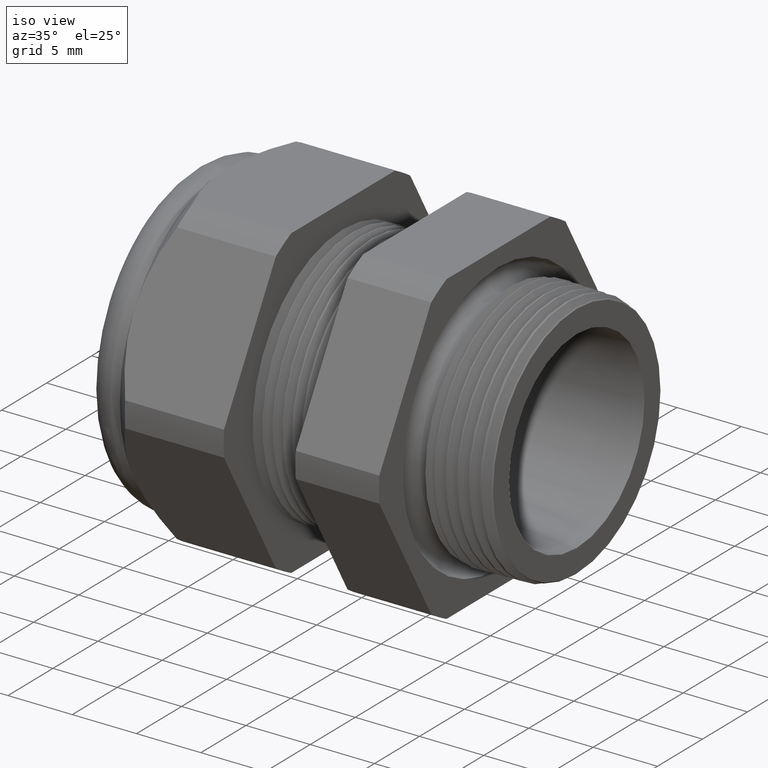
[diagram: clean part render]
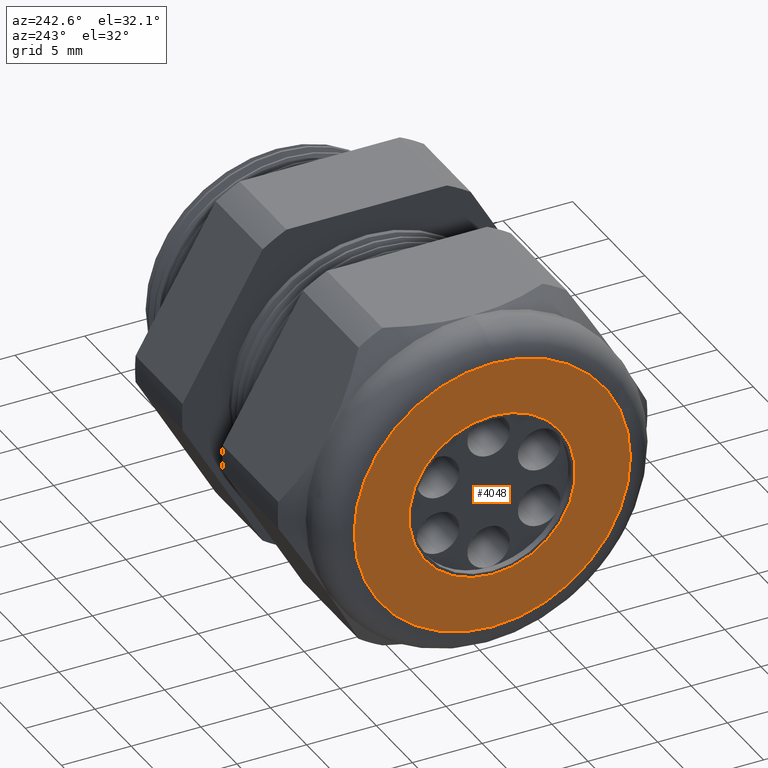
[diagram: tour spotlight — one face highlighted and labeled with its STEP entity id]
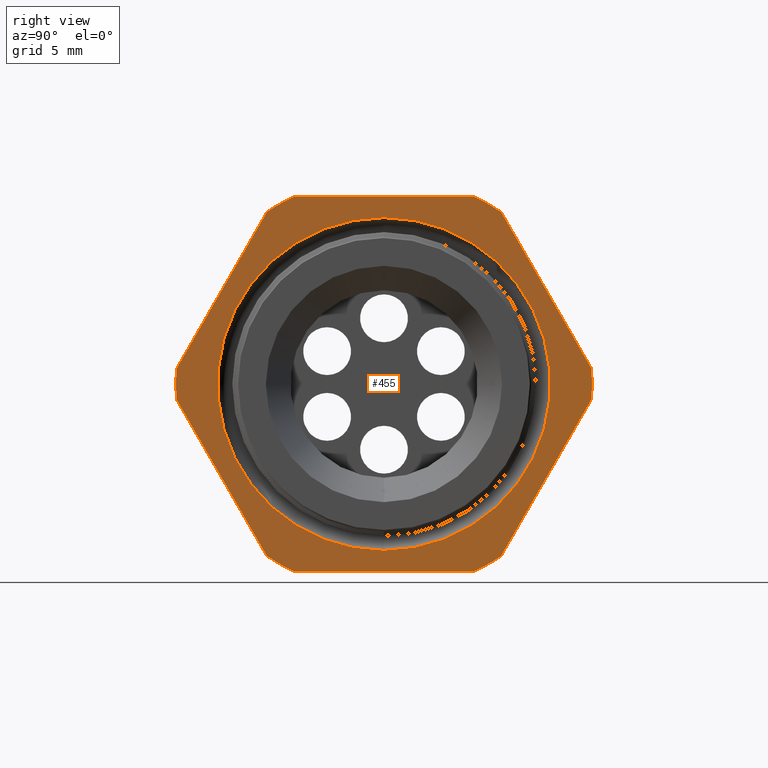
[diagram: tour spotlight — one face highlighted and labeled with its STEP entity id]
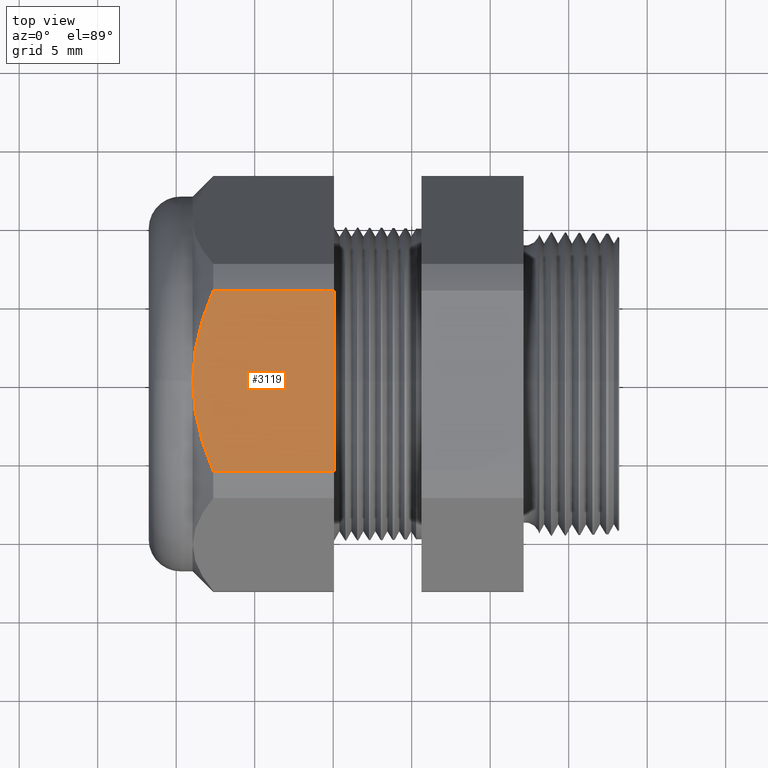
[diagram: tour spotlight — one face highlighted and labeled with its STEP entity id]
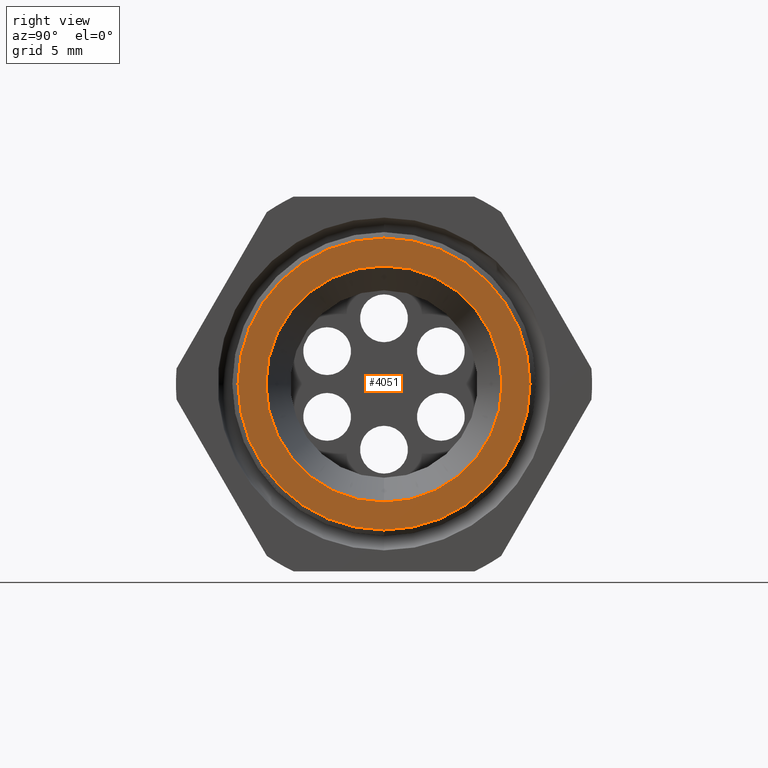
[diagram: tour spotlight — one face highlighted and labeled with its STEP entity id]
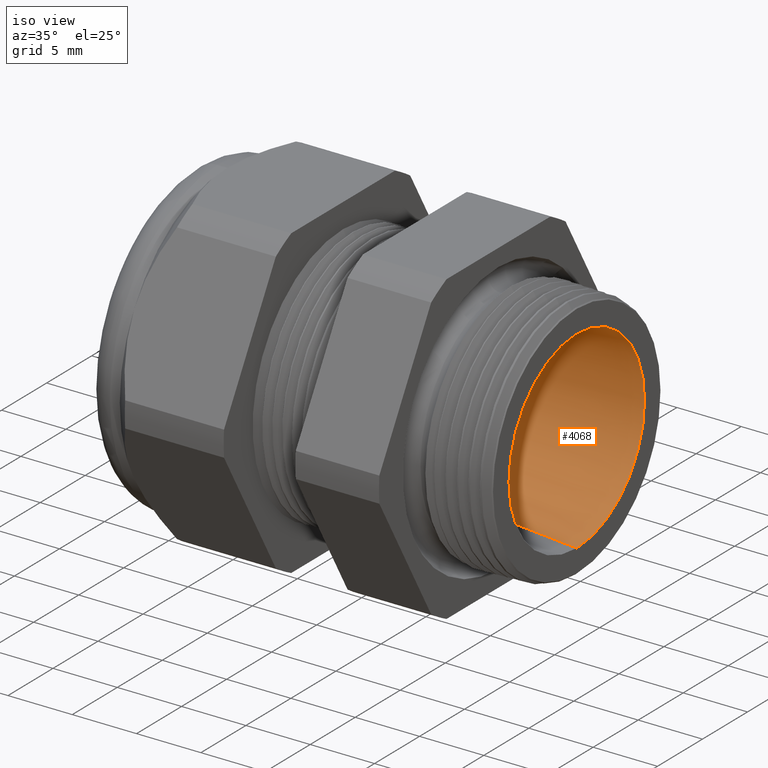
[diagram: tour spotlight — one face highlighted and labeled with its STEP entity id]
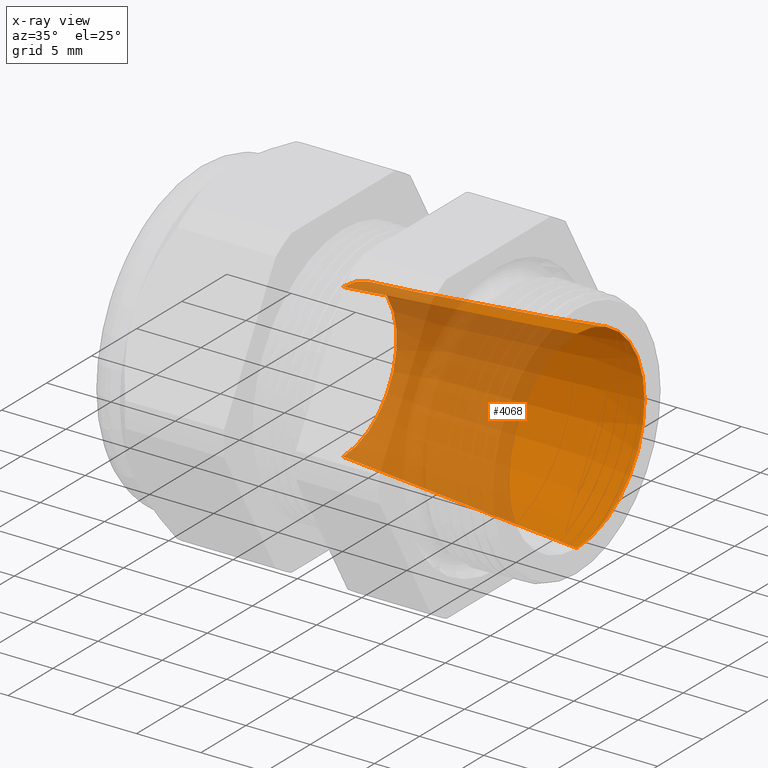
[diagram: x-ray of the same camera — body ghosted, this tour face saturated]
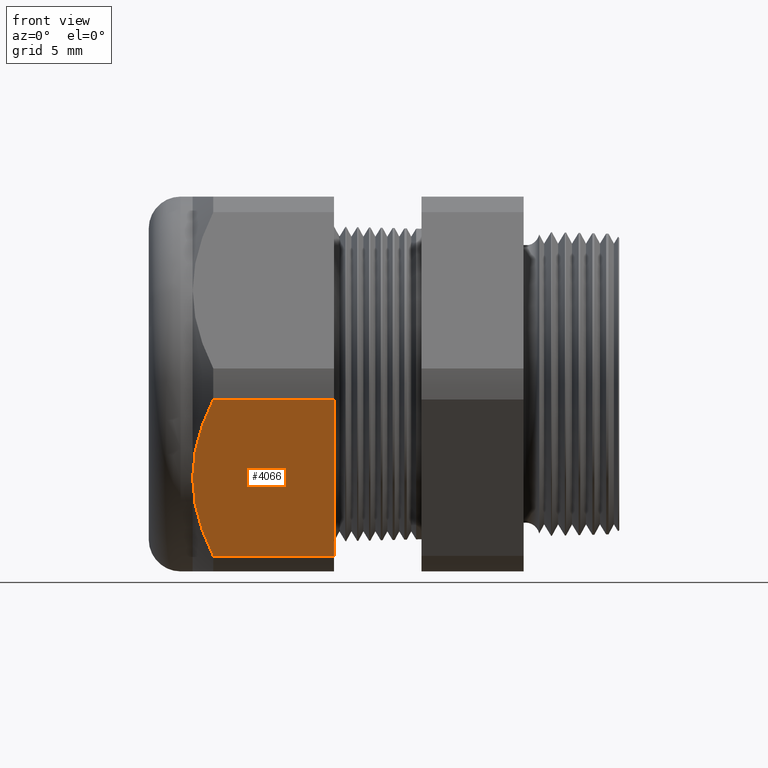
[diagram: tour spotlight — one face highlighted and labeled with its STEP entity id]
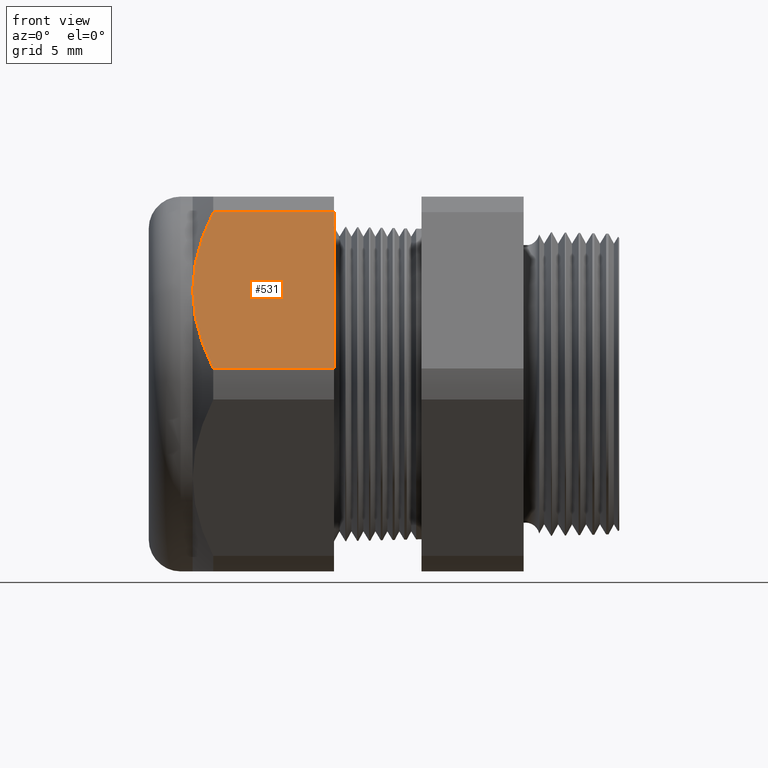
[diagram: tour spotlight — one face highlighted and labeled with its STEP entity id]
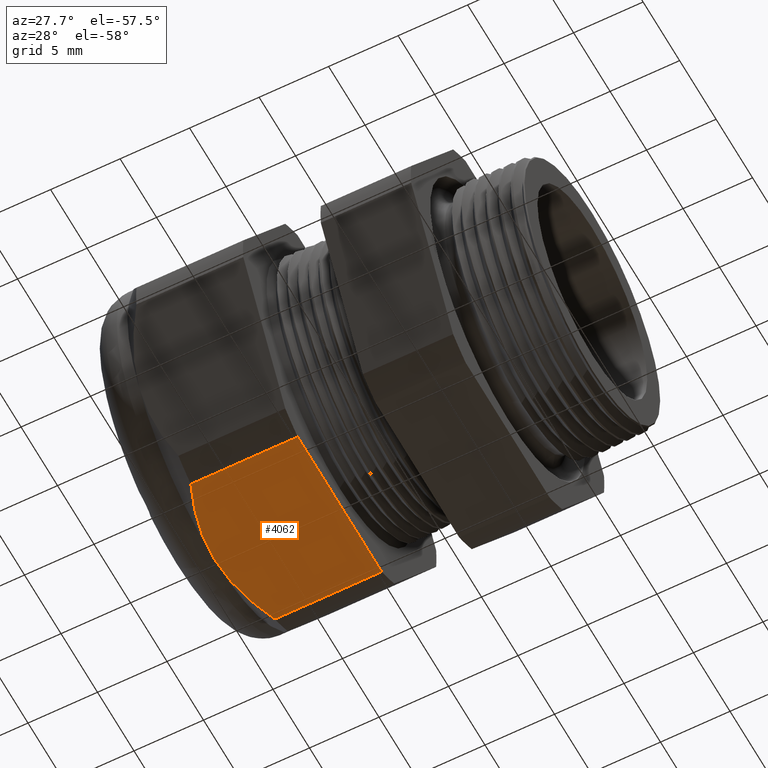
[diagram: tour spotlight — one face highlighted and labeled with its STEP entity id]
A machine part: a face-by-face anatomy tour. The part has 144 B-rep faces; the first image is the clean iso view, then the 8 largest visible faces are spotlighted one at a time (largest first), each with its STEP entity span.

Face 1 — auxiliary view, entity #4048. In plain terms, the highlighted planar face has unit normal (-1, 0, 0).
Definition (entity closure, byte-faithful):
#744 = VERTEX_POINT ( 'NONE', #2587 ) ;
#746 = EDGE_CURVE ( 'NONE', #747, #744, #2586, .T. ) ;
#747 = VERTEX_POINT ( 'NONE', #2641 ) ;
#775 = EDGE_CURVE ( 'NONE', #776, #777, #2655, .T. ) ;
#776 = VERTEX_POINT ( 'NONE', #2650 ) ;
#777 = VERTEX_POINT ( 'NONE', #2649 ) ;
#2583 = DIRECTION ( 'NONE',  ( -1.000000000000000000, 0.0000000000000000000, 0.0000000000000000000 ) ) ;
#2584 = CARTESIAN_POINT ( 'NONE',  ( -1.249999999999999800, 0.0000000000000000000, 0.0000000000000000000 ) ) ;
#2585 = AXIS2_PLACEMENT_3D ( 'NONE', #2584, #2583, #2642 ) ;
#2586 = CIRCLE ( 'NONE', #2585, 0.3899999999999999600 ) ;
#2587 = CARTESIAN_POINT ( 'NONE',  ( -1.249999999999999800, 5.265981236333617600E-017, -0.3899999999999999600 ) ) ;
#2641 = CARTESIAN_POINT ( 'NONE',  ( -1.249999999999999800, 0.0000000000000000000, 0.3899999999999999600 ) ) ;
#2642 = DIRECTION ( 'NONE',  ( 0.0000000000000000000, 0.0000000000000000000, 1.000000000000000000 ) ) ;
#2649 = CARTESIAN_POINT ( 'NONE',  ( -1.249999999999999800, 0.0000000000000000000, -0.2349999999999999900 ) ) ;
#2650 = CARTESIAN_POINT ( 'NONE',  ( -1.249999999999999800, 2.877919977996279800E-017, 0.2349999999999999900 ) ) ;
#2651 = DIRECTION ( 'NONE',  ( 0.0000000000000000000, 0.0000000000000000000, -1.000000000000000000 ) ) ;
#2652 = DIRECTION ( 'NONE',  ( 1.000000000000000000, 0.0000000000000000000, 0.0000000000000000000 ) ) ;
#2653 = CARTESIAN_POINT ( 'NONE',  ( -1.249999999999999800, 0.0000000000000000000, 0.0000000000000000000 ) ) ;
#2654 = AXIS2_PLACEMENT_3D ( 'NONE', #2653, #2652, #2651 ) ;
#2655 = CIRCLE ( 'NONE', #2654, 0.2349999999999999900 ) ;
#3775 = DIRECTION ( 'NONE',  ( 0.0000000000000000000, 0.0000000000000000000, 1.000000000000000000 ) ) ;
#3776 = DIRECTION ( 'NONE',  ( -1.000000000000000000, 0.0000000000000000000, 0.0000000000000000000 ) ) ;
#3777 = CARTESIAN_POINT ( 'NONE',  ( -1.249999999999999800, 0.0000000000000000000, 0.0000000000000000000 ) ) ;
#3778 = AXIS2_PLACEMENT_3D ( 'NONE', #3777, #3776, #3775 ) ;
#3779 = CIRCLE ( 'NONE', #3778, 0.3899999999999999600 ) ;
#3806 = DIRECTION ( 'NONE',  ( 0.0000000000000000000, 0.0000000000000000000, 1.000000000000000000 ) ) ;
#3807 = DIRECTION ( 'NONE',  ( -1.000000000000000000, 0.0000000000000000000, 0.0000000000000000000 ) ) ;
#3808 = CARTESIAN_POINT ( 'NONE',  ( -1.249999999999999800, 0.4699999999999999700, 0.0000000000000000000 ) ) ;
#3809 = AXIS2_PLACEMENT_3D ( 'NONE', #3808, #3807, #3806 ) ;
#3810 = PLANE ( 'NONE',  #3809 ) ;
#3811 = FACE_BOUND ( 'NONE', #4023, .T. ) ;
#3812 = FACE_OUTER_BOUND ( 'NONE', #4036, .T. ) ;
#3850 = DIRECTION ( 'NONE',  ( 0.0000000000000000000, 0.0000000000000000000, -1.000000000000000000 ) ) ;
#3851 = DIRECTION ( 'NONE',  ( 1.000000000000000000, 0.0000000000000000000, 0.0000000000000000000 ) ) ;
#3852 = CARTESIAN_POINT ( 'NONE',  ( -1.249999999999999800, 0.0000000000000000000, 0.0000000000000000000 ) ) ;
#3853 = AXIS2_PLACEMENT_3D ( 'NONE', #3852, #3851, #3850 ) ;
#3854 = CIRCLE ( 'NONE', #3853, 0.2349999999999999900 ) ;
#4023 = EDGE_LOOP ( 'NONE', ( #4096, #4099 ) ) ;
#4030 = ORIENTED_EDGE ( 'NONE', *, *, #4033, .T. ) ;
#4031 = ORIENTED_EDGE ( 'NONE', *, *, #746, .T. ) ;
#4033 = EDGE_CURVE ( 'NONE', #744, #747, #3779, .T. ) ;
#4036 = EDGE_LOOP ( 'NONE', ( #4031, #4030 ) ) ;
#4048 = ADVANCED_FACE ( 'NONE', ( #3812, #3811 ), #3810, .T. ) ;
#4096 = ORIENTED_EDGE ( 'NONE', *, *, #4097, .T. ) ;
#4097 = EDGE_CURVE ( 'NONE', #777, #776, #3854, .T. ) ;
#4099 = ORIENTED_EDGE ( 'NONE', *, *, #775, .T. ) ;

Face 2 — right view, entity #455. In plain terms, the highlighted planar face has unit normal (1, 0, 0).
Definition (entity closure, byte-faithful):
#4 = EDGE_CURVE ( 'NONE', #4032, #460, #1250, .T. ) ;
#6 = ORIENTED_EDGE ( 'NONE', *, *, #9, .T. ) ;
#7 = ORIENTED_EDGE ( 'NONE', *, *, #4, .T. ) ;
#9 = EDGE_CURVE ( 'NONE', #4034, #4032, #1307, .T. ) ;
#346 = EDGE_CURVE ( 'NONE', #460, #459, #1783, .T. ) ;
#422 = EDGE_LOOP ( 'NONE', ( #431, #458, #456, #449, #447, #4049, #4044, #4046, #4040, #4038, #6, #7 ) ) ;
#431 = ORIENTED_EDGE ( 'NONE', *, *, #346, .T. ) ;
#436 = ORIENTED_EDGE ( 'NONE', *, *, #1196, .F. ) ;
#437 = ORIENTED_EDGE ( 'NONE', *, *, #438, .F. ) ;
#438 = EDGE_CURVE ( 'NONE', #1197, #1194, #1967, .T. ) ;
#439 = EDGE_LOOP ( 'NONE', ( #437, #436 ) ) ;
#443 = VERTEX_POINT ( 'NONE', #2014 ) ;
#444 = VERTEX_POINT ( 'NONE', #2013 ) ;
#446 = EDGE_CURVE ( 'NONE', #450, #443, #2007, .T. ) ;
#447 = ORIENTED_EDGE ( 'NONE', *, *, #446, .T. ) ;
#448 = EDGE_CURVE ( 'NONE', #451, #450, #2003, .T. ) ;
#449 = ORIENTED_EDGE ( 'NONE', *, *, #448, .T. ) ;
#450 = VERTEX_POINT ( 'NONE', #1998 ) ;
#451 = VERTEX_POINT ( 'NONE', #1997 ) ;
#452 = EDGE_CURVE ( 'NONE', #457, #451, #1996, .T. ) ;
#455 = ADVANCED_FACE ( 'NONE', ( #1987, #1986 ), #1985, .T. ) ;
#456 = ORIENTED_EDGE ( 'NONE', *, *, #452, .T. ) ;
#457 = VERTEX_POINT ( 'NONE', #2043 ) ;
#458 = ORIENTED_EDGE ( 'NONE', *, *, #461, .T. ) ;
#459 = VERTEX_POINT ( 'NONE', #2042 ) ;
#460 = VERTEX_POINT ( 'NONE', #2041 ) ;
#461 = EDGE_CURVE ( 'NONE', #459, #457, #2040, .T. ) ;
#1194 = VERTEX_POINT ( 'NONE', #3383 ) ;
#1196 = EDGE_CURVE ( 'NONE', #1194, #1197, #3382, .T. ) ;
#1197 = VERTEX_POINT ( 'NONE', #3377 ) ;
#1246 = DIRECTION ( 'NONE',  ( 0.0000000000000000000, 0.0000000000000000000, -1.000000000000000000 ) ) ;
#1247 = DIRECTION ( 'NONE',  ( 1.000000000000000000, 0.0000000000000000000, 0.0000000000000000000 ) ) ;
#1248 = CARTESIAN_POINT ( 'NONE',  ( -0.3100000000000000000, 0.0000000000000000000, 0.0000000000000000000 ) ) ;
#1249 = AXIS2_PLACEMENT_3D ( 'NONE', #1248, #1247, #1246 ) ;
#1250 = CIRCLE ( 'NONE', #1249, 0.5217000000000000500 ) ;
#1304 = DIRECTION ( 'NONE',  ( 0.0000000000000000000, 1.000000000000000000, 0.0000000000000000000 ) ) ;
#1305 = VECTOR ( 'NONE', #1304, 39.37007874015748100 ) ;
#1306 = CARTESIAN_POINT ( 'NONE',  ( -0.3100000000000000000, 0.9399999999999999500, -0.4700000000000000300 ) ) ;
#1307 = LINE ( 'NONE', #1306, #1305 ) ;
#1780 = DIRECTION ( 'NONE',  ( 0.0000000000000000000, 0.5000000000000000000, 0.8660254037844386000 ) ) ;
#1781 = VECTOR ( 'NONE', #1780, 39.37007874015748100 ) ;
#1782 = CARTESIAN_POINT ( 'NONE',  ( -0.3100000000000000000, 0.6420319397786863300, 0.1720319397786860300 ) ) ;
#1783 = LINE ( 'NONE', #1782, #1781 ) ;
#1954 = DIRECTION ( 'NONE',  ( 0.0000000000000000000, 0.0000000000000000000, -1.000000000000000000 ) ) ;
#1955 = DIRECTION ( 'NONE',  ( 1.000000000000000000, 0.0000000000000000000, 0.0000000000000000000 ) ) ;
#1966 = AXIS2_PLACEMENT_3D ( 'NONE', #1969, #1955, #1954 ) ;
#1967 = CIRCLE ( 'NONE', #1966, 0.4171913630462824000 ) ;
#1969 = CARTESIAN_POINT ( 'NONE',  ( -0.3100000000000000000, 0.0000000000000000000, 0.0000000000000000000 ) ) ;
#1985 = PLANE ( 'NONE',  #2047 ) ;
#1986 = FACE_OUTER_BOUND ( 'NONE', #422, .T. ) ;
#1987 = FACE_BOUND ( 'NONE', #439, .T. ) ;
#1993 = DIRECTION ( 'NONE',  ( 0.0000000000000000000, -0.4999999999999998300, 0.8660254037844388200 ) ) ;
#1994 = VECTOR ( 'NONE', #1993, 39.37007874015748100 ) ;
#1995 = CARTESIAN_POINT ( 'NONE',  ( -0.3100000000000000000, 0.6420319397786862200, -0.1720319397786860500 ) ) ;
#1996 = LINE ( 'NONE', #1995, #1994 ) ;
#1997 = CARTESIAN_POINT ( 'NONE',  ( -0.3100000000000000000, 0.2938165587564948700, 0.4310947921287048800 ) ) ;
#1998 = CARTESIAN_POINT ( 'NONE',  ( -0.3100000000000000000, 0.2264307620443832800, 0.4699999999999999200 ) ) ;
#1999 = DIRECTION ( 'NONE',  ( 0.0000000000000000000, 0.0000000000000000000, -1.000000000000000000 ) ) ;
#2000 = DIRECTION ( 'NONE',  ( 1.000000000000000000, 0.0000000000000000000, 0.0000000000000000000 ) ) ;
#2001 = CARTESIAN_POINT ( 'NONE',  ( -0.3100000000000000000, 0.0000000000000000000, 0.0000000000000000000 ) ) ;
#2002 = AXIS2_PLACEMENT_3D ( 'NONE', #2001, #2000, #1999 ) ;
#2003 = CIRCLE ( 'NONE', #2002, 0.5217000000000000500 ) ;
#2004 = DIRECTION ( 'NONE',  ( 0.0000000000000000000, -1.000000000000000000, 0.0000000000000000000 ) ) ;
#2005 = VECTOR ( 'NONE', #2004, 39.37007874015748100 ) ;
#2006 = CARTESIAN_POINT ( 'NONE',  ( -0.3100000000000000000, 0.9399999999999999500, 0.4699999999999999200 ) ) ;
#2007 = LINE ( 'NONE', #2006, #2005 ) ;
#2013 = CARTESIAN_POINT ( 'NONE',  ( -0.3100000000000000000, -0.2938165587564945900, 0.4310947921287050500 ) ) ;
#2014 = CARTESIAN_POINT ( 'NONE',  ( -0.3100000000000000000, -0.2264307620443835300, 0.4699999999999997000 ) ) ;
#2036 = DIRECTION ( 'NONE',  ( 0.0000000000000000000, 0.0000000000000000000, -1.000000000000000000 ) ) ;
#2037 = DIRECTION ( 'NONE',  ( 1.000000000000000000, 0.0000000000000000000, 0.0000000000000000000 ) ) ;
#2038 = CARTESIAN_POINT ( 'NONE',  ( -0.3100000000000000000, 0.0000000000000000000, 0.0000000000000000000 ) ) ;
#2039 = AXIS2_PLACEMENT_3D ( 'NONE', #2038, #2037, #2036 ) ;
#2040 = CIRCLE ( 'NONE', #2039, 0.5217000000000000500 ) ;
#2041 = CARTESIAN_POINT ( 'NONE',  ( -0.3100000000000000000, 0.2938165587564949800, -0.4310947921287047700 ) ) ;
#2042 = CARTESIAN_POINT ( 'NONE',  ( -0.3100000000000000000, 0.5202473208008777700, -0.03890520787129524800 ) ) ;
#2043 = CARTESIAN_POINT ( 'NONE',  ( -0.3100000000000000000, 0.5202473208008776600, 0.03890520787129531800 ) ) ;
#2044 = DIRECTION ( 'NONE',  ( 0.0000000000000000000, 0.0000000000000000000, -1.000000000000000000 ) ) ;
#2045 = DIRECTION ( 'NONE',  ( 1.000000000000000000, 0.0000000000000000000, 0.0000000000000000000 ) ) ;
#2046 = CARTESIAN_POINT ( 'NONE',  ( -0.3100000000000000000, 0.9399999999999999500, 0.0000000000000000000 ) ) ;
#2047 = AXIS2_PLACEMENT_3D ( 'NONE', #2046, #2045, #2044 ) ;
#3377 = CARTESIAN_POINT ( 'NONE',  ( -0.3100000000000000000, 0.0000000000000000000, -0.4171913630462824000 ) ) ;
#3378 = DIRECTION ( 'NONE',  ( 0.0000000000000000000, 0.0000000000000000000, -1.000000000000000000 ) ) ;
#3379 = DIRECTION ( 'NONE',  ( 1.000000000000000000, 0.0000000000000000000, 0.0000000000000000000 ) ) ;
#3380 = CARTESIAN_POINT ( 'NONE',  ( -0.3100000000000000000, 0.0000000000000000000, 0.0000000000000000000 ) ) ;
#3381 = AXIS2_PLACEMENT_3D ( 'NONE', #3380, #3379, #3378 ) ;
#3382 = CIRCLE ( 'NONE', #3381, 0.4171913630462824000 ) ;
#3383 = CARTESIAN_POINT ( 'NONE',  ( -0.3100000000000000000, 5.109120673865511800E-017, 0.4171913630462824000 ) ) ;
#3717 = CARTESIAN_POINT ( 'NONE',  ( -0.3100000000000000000, 0.2264307620443831200, -0.4700000000000000300 ) ) ;
#3749 = DIRECTION ( 'NONE',  ( 0.0000000000000000000, 0.0000000000000000000, -1.000000000000000000 ) ) ;
#3750 = DIRECTION ( 'NONE',  ( 1.000000000000000000, 0.0000000000000000000, 0.0000000000000000000 ) ) ;
#3751 = CARTESIAN_POINT ( 'NONE',  ( -0.3100000000000000000, 0.0000000000000000000, 0.0000000000000000000 ) ) ;
#3752 = AXIS2_PLACEMENT_3D ( 'NONE', #3751, #3750, #3749 ) ;
#3753 = CIRCLE ( 'NONE', #3752, 0.5217000000000000500 ) ;
#3754 = CARTESIAN_POINT ( 'NONE',  ( -0.3100000000000000000, -0.5202473208008777700, -0.03890520787129508200 ) ) ;
#3755 = DIRECTION ( 'NONE',  ( 0.0000000000000000000, 0.0000000000000000000, -1.000000000000000000 ) ) ;
#3756 = DIRECTION ( 'NONE',  ( 1.000000000000000000, 0.0000000000000000000, 0.0000000000000000000 ) ) ;
#3757 = CARTESIAN_POINT ( 'NONE',  ( -0.3100000000000000000, 0.0000000000000000000, 0.0000000000000000000 ) ) ;
#3758 = AXIS2_PLACEMENT_3D ( 'NONE', #3757, #3756, #3755 ) ;
#3759 = CIRCLE ( 'NONE', #3758, 0.5217000000000000500 ) ;
#3760 = DIRECTION ( 'NONE',  ( 0.0000000000000000000, -0.4999999999999998300, -0.8660254037844388200 ) ) ;
#3761 = VECTOR ( 'NONE', #3760, 39.37007874015748100 ) ;
#3762 = CARTESIAN_POINT ( 'NONE',  ( -0.3100000000000000000, -0.1720319397786862800, 0.6420319397786858900 ) ) ;
#3763 = LINE ( 'NONE', #3762, #3761 ) ;
#3764 = DIRECTION ( 'NONE',  ( 0.0000000000000000000, 0.5000000000000001100, -0.8660254037844386000 ) ) ;
#3765 = VECTOR ( 'NONE', #3764, 39.37007874015748100 ) ;
#3766 = CARTESIAN_POINT ( 'NONE',  ( -0.3100000000000000000, -0.1720319397786861700, -0.6420319397786863300 ) ) ;
#3767 = LINE ( 'NONE', #3766, #3765 ) ;
#3768 = CARTESIAN_POINT ( 'NONE',  ( -0.3100000000000000000, -0.2938165587564944800, -0.4310947921287051100 ) ) ;
#3769 = DIRECTION ( 'NONE',  ( 0.0000000000000000000, 0.0000000000000000000, -1.000000000000000000 ) ) ;
#3770 = DIRECTION ( 'NONE',  ( 1.000000000000000000, 0.0000000000000000000, 0.0000000000000000000 ) ) ;
#3771 = CARTESIAN_POINT ( 'NONE',  ( -0.3100000000000000000, 0.0000000000000000000, 0.0000000000000000000 ) ) ;
#3772 = AXIS2_PLACEMENT_3D ( 'NONE', #3771, #3770, #3769 ) ;
#3773 = CIRCLE ( 'NONE', #3772, 0.5217000000000000500 ) ;
#3774 = CARTESIAN_POINT ( 'NONE',  ( -0.3100000000000000000, -0.2264307620443830900, -0.4700000000000000300 ) ) ;
#3805 = CARTESIAN_POINT ( 'NONE',  ( -0.3100000000000000000, -0.5202473208008777700, 0.03890520787129464500 ) ) ;
#4032 = VERTEX_POINT ( 'NONE', #3717 ) ;
#4034 = VERTEX_POINT ( 'NONE', #3774 ) ;
#4035 = EDGE_CURVE ( 'NONE', #4037, #4034, #3773, .T. ) ;
#4037 = VERTEX_POINT ( 'NONE', #3768 ) ;
#4038 = ORIENTED_EDGE ( 'NONE', *, *, #4035, .T. ) ;
#4039 = EDGE_CURVE ( 'NONE', #4043, #4037, #3767, .T. ) ;
#4040 = ORIENTED_EDGE ( 'NONE', *, *, #4039, .T. ) ;
#4041 = EDGE_CURVE ( 'NONE', #444, #4050, #3763, .T. ) ;
#4042 = EDGE_CURVE ( 'NONE', #4050, #4043, #3759, .T. ) ;
#4043 = VERTEX_POINT ( 'NONE', #3754 ) ;
#4044 = ORIENTED_EDGE ( 'NONE', *, *, #4041, .T. ) ;
#4045 = EDGE_CURVE ( 'NONE', #443, #444, #3753, .T. ) ;
#4046 = ORIENTED_EDGE ( 'NONE', *, *, #4042, .T. ) ;
#4049 = ORIENTED_EDGE ( 'NONE', *, *, #4045, .T. ) ;
#4050 = VERTEX_POINT ( 'NONE', #3805 ) ;

Face 3 — top view, entity #3119. In plain terms, the highlighted planar face has unit normal (0, 0, 1).
Definition (entity closure, byte-faithful):
#418 = ORIENTED_EDGE ( 'NONE', *, *, #419, .F. ) ;
#419 = EDGE_CURVE ( 'NONE', #565, #543, #1944, .T. ) ;
#543 = VERTEX_POINT ( 'NONE', #2190 ) ;
#545 = VERTEX_POINT ( 'NONE', #2184 ) ;
#549 = EDGE_CURVE ( 'NONE', #543, #545, #2183, .T. ) ;
#559 = ORIENTED_EDGE ( 'NONE', *, *, #561, .T. ) ;
#560 = EDGE_CURVE ( 'NONE', #564, #788, #2206, .T. ) ;
#561 = EDGE_CURVE ( 'NONE', #788, #545, #2254, .T. ) ;
#562 = ORIENTED_EDGE ( 'NONE', *, *, #560, .T. ) ;
#563 = ORIENTED_EDGE ( 'NONE', *, *, #549, .F. ) ;
#564 = VERTEX_POINT ( 'NONE', #2253 ) ;
#565 = VERTEX_POINT ( 'NONE', #2255 ) ;
#567 = EDGE_CURVE ( 'NONE', #565, #564, #2240, .T. ) ;
#568 = ORIENTED_EDGE ( 'NONE', *, *, #567, .T. ) ;
#788 = VERTEX_POINT ( 'NONE', #2694 ) ;
#1941 = DIRECTION ( 'NONE',  ( 0.0000000000000000000, -1.000000000000000000, 0.0000000000000000000 ) ) ;
#1942 = VECTOR ( 'NONE', #1941, 39.37007874015748100 ) ;
#1943 = CARTESIAN_POINT ( 'NONE',  ( -0.7854330708661414500, 0.3950000000000000200, 0.4699999999999999200 ) ) ;
#1944 = LINE ( 'NONE', #1943, #1942 ) ;
#2180 = DIRECTION ( 'NONE',  ( -1.000000000000000000, 0.0000000000000000000, 0.0000000000000000000 ) ) ;
#2181 = VECTOR ( 'NONE', #2180, 39.37007874015748100 ) ;
#2182 = CARTESIAN_POINT ( 'NONE',  ( -0.06999999999999993700, -0.2264307620443835300, 0.4699999999999997000 ) ) ;
#2183 = LINE ( 'NONE', #2182, #2181 ) ;
#2184 = CARTESIAN_POINT ( 'NONE',  ( -1.088063779527558700, -0.2264307620443834500, 0.4699999999999999200 ) ) ;
#2190 = CARTESIAN_POINT ( 'NONE',  ( -0.7854330708661414500, -0.2264307620443835300, 0.4699999999999997000 ) ) ;
#2206 = B_SPLINE_CURVE_WITH_KNOTS ( 'NONE', 3,
 ( #2265, #2264, #2263, #2262, #2261, #2260, #2259, #2258, #2257, #2256 ),
 .UNSPECIFIED., .F., .F.,
 ( 4, 2, 2, 2, 4 ),
 ( 0.009140358755258088200, 0.01061001397932214000, 0.01207966920338619300, 0.01354932442745024500, 0.01501897965151429700 ),
 .UNSPECIFIED. ) ;
#2237 = DIRECTION ( 'NONE',  ( -1.000000000000000000, 0.0000000000000000000, 0.0000000000000000000 ) ) ;
#2238 = VECTOR ( 'NONE', #2237, 39.37007874015748100 ) ;
#2239 = CARTESIAN_POINT ( 'NONE',  ( -0.06999999999999993700, 0.2264307620443832800, 0.4699999999999999200 ) ) ;
#2240 = LINE ( 'NONE', #2239, #2238 ) ;
#2245 = CARTESIAN_POINT ( 'NONE',  ( -1.088063779527558700, -0.2264307620443834500, 0.4699999999999999200 ) ) ;
#2246 = CARTESIAN_POINT ( 'NONE',  ( -1.095800659726855300, -0.2086048696456210300, 0.4699999999999999700 ) ) ;
#2247 = CARTESIAN_POINT ( 'NONE',  ( -1.102949366997028100, -0.1904348960138966800, 0.4700000000000000300 ) ) ;
#2248 = CARTESIAN_POINT ( 'NONE',  ( -1.115712352585576100, -0.1532690879941743800, 0.4699999999999999200 ) ) ;
#2249 = CARTESIAN_POINT ( 'NONE',  ( -1.121231388637372800, -0.1345390626635396500, 0.4699999999999998600 ) ) ;
#2250 = CARTESIAN_POINT ( 'NONE',  ( -1.134778598172672600, -0.07783554612607099200, 0.4699999999999998600 ) ) ;
#2251 = CARTESIAN_POINT ( 'NONE',  ( -1.139763779527558800, -0.03934296915062190200, 0.4699999999999999700 ) ) ;
#2252 = CARTESIAN_POINT ( 'NONE',  ( -1.139763779527558800, 0.0000000000000000000, 0.4699999999999999200 ) ) ;
#2253 = CARTESIAN_POINT ( 'NONE',  ( -1.088063779527558700, 0.2264307620443833400, 0.4700000000000000300 ) ) ;
#2254 = B_SPLINE_CURVE_WITH_KNOTS ( 'NONE', 3,
 ( #2252, #2251, #2250, #2249, #2248, #2247, #2246, #2245 ),
 .UNSPECIFIED., .F., .F.,
 ( 4, 2, 2, 4 ),
 ( 0.01501897965151429700, 0.01796263803772296000, 0.01943446723082728800, 0.02090629642393161700 ),
 .UNSPECIFIED. ) ;
#2255 = CARTESIAN_POINT ( 'NONE',  ( -0.7854330708661414500, 0.2264307620443832800, 0.4699999999999999200 ) ) ;
#2256 = CARTESIAN_POINT ( 'NONE',  ( -1.139763779527558800, 0.0000000000000000000, 0.4699999999999999200 ) ) ;
#2257 = CARTESIAN_POINT ( 'NONE',  ( -1.139763779527559000, 0.01964242875915809400, 0.4699999999999999200 ) ) ;
#2258 = CARTESIAN_POINT ( 'NONE',  ( -1.138517019735540500, 0.03924163778662351200, 0.4699999999999999700 ) ) ;
#2259 = CARTESIAN_POINT ( 'NONE',  ( -1.133749478914868500, 0.07782038235249978700, 0.4699999999999999200 ) ) ;
#2260 = CARTESIAN_POINT ( 'NONE',  ( -1.130231001418866300, 0.09688970369981489400, 0.4699999999999999700 ) ) ;
#2261 = CARTESIAN_POINT ( 'NONE',  ( -1.121202062721104600, 0.1346420459264780200, 0.4699999999999999200 ) ) ;
#2262 = CARTESIAN_POINT ( 'NONE',  ( -1.115692781244512300, 0.1533252955870070000, 0.4699999999999999200 ) ) ;
#2263 = CARTESIAN_POINT ( 'NONE',  ( -1.102974602953725700, 0.1903621927138393300, 0.4699999999999999700 ) ) ;
#2264 = CARTESIAN_POINT ( 'NONE',  ( -1.095800509309332100, 0.2086052162099338300, 0.4699999999999997500 ) ) ;
#2265 = CARTESIAN_POINT ( 'NONE',  ( -1.088063779527558700, 0.2264307620443833400, 0.4700000000000000300 ) ) ;
#2694 = CARTESIAN_POINT ( 'NONE',  ( -1.139763779527558800, 0.0000000000000000000, 0.4699999999999999200 ) ) ;
#3119 = ADVANCED_FACE ( 'NONE', ( #3563 ), #3568, .T. ) ;
#3187 = EDGE_LOOP ( 'NONE', ( #568, #562, #559, #563, #418 ) ) ;
#3563 = FACE_OUTER_BOUND ( 'NONE', #3187, .T. ) ;
#3568 = PLANE ( 'NONE',  #3627 ) ;
#3624 = DIRECTION ( 'NONE',  ( 1.000000000000000000, 0.0000000000000000000, 0.0000000000000000000 ) ) ;
#3625 = DIRECTION ( 'NONE',  ( 0.0000000000000000000, 0.0000000000000000000, 1.000000000000000000 ) ) ;
#3626 = CARTESIAN_POINT ( 'NONE',  ( -0.06999999999999993700, -0.2264307620443832800, 0.4699999999999999200 ) ) ;
#3627 = AXIS2_PLACEMENT_3D ( 'NONE', #3626, #3625, #3624 ) ;

Face 4 — right view, entity #4051. In plain terms, the highlighted planar face has unit normal (1, 0, 0).
Definition (entity closure, byte-faithful):
#48 = ORIENTED_EDGE ( 'NONE', *, *, #49, .T. ) ;
#49 = EDGE_CURVE ( 'NONE', #759, #758, #1357, .T. ) ;
#50 = ORIENTED_EDGE ( 'NONE', *, *, #757, .T. ) ;
#51 = EDGE_LOOP ( 'NONE', ( #52, #53 ) ) ;
#52 = ORIENTED_EDGE ( 'NONE', *, *, #4054, .F. ) ;
#53 = ORIENTED_EDGE ( 'NONE', *, *, #797, .F. ) ;
#757 = EDGE_CURVE ( 'NONE', #758, #759, #2619, .T. ) ;
#758 = VERTEX_POINT ( 'NONE', #2615 ) ;
#759 = VERTEX_POINT ( 'NONE', #2614 ) ;
#795 = VERTEX_POINT ( 'NONE', #2682 ) ;
#797 = EDGE_CURVE ( 'NONE', #795, #798, #2681, .T. ) ;
#798 = VERTEX_POINT ( 'NONE', #2676 ) ;
#1353 = DIRECTION ( 'NONE',  ( 0.0000000000000000000, 0.0000000000000000000, -1.000000000000000000 ) ) ;
#1354 = DIRECTION ( 'NONE',  ( 1.000000000000000000, 0.0000000000000000000, 0.0000000000000000000 ) ) ;
#1355 = CARTESIAN_POINT ( 'NONE',  ( -0.06999999999999996500, 0.0000000000000000000, 0.0000000000000000000 ) ) ;
#1356 = AXIS2_PLACEMENT_3D ( 'NONE', #1355, #1354, #1353 ) ;
#1357 = CIRCLE ( 'NONE', #1356, 0.3659933049898728100 ) ;
#2614 = CARTESIAN_POINT ( 'NONE',  ( -0.06999999999999996500, 0.0000000000000000000, 0.3659933049898728100 ) ) ;
#2615 = CARTESIAN_POINT ( 'NONE',  ( -0.06999999999999996500, 4.501577275657292900E-017, -0.3659933049898728100 ) ) ;
#2616 = DIRECTION ( 'NONE',  ( 0.0000000000000000000, 0.0000000000000000000, -1.000000000000000000 ) ) ;
#2617 = DIRECTION ( 'NONE',  ( 1.000000000000000000, 0.0000000000000000000, 0.0000000000000000000 ) ) ;
#2618 = AXIS2_PLACEMENT_3D ( 'NONE', #2624, #2617, #2616 ) ;
#2619 = CIRCLE ( 'NONE', #2618, 0.3659933049898728100 ) ;
#2624 = CARTESIAN_POINT ( 'NONE',  ( -0.06999999999999996500, 0.0000000000000000000, 0.0000000000000000000 ) ) ;
#2676 = CARTESIAN_POINT ( 'NONE',  ( -0.06999999999999996500, 0.0000000000000000000, -0.2962657257183017900 ) ) ;
#2677 = DIRECTION ( 'NONE',  ( 0.0000000000000000000, 0.0000000000000000000, -1.000000000000000000 ) ) ;
#2678 = DIRECTION ( 'NONE',  ( 1.000000000000000000, 0.0000000000000000000, 0.0000000000000000000 ) ) ;
#2679 = CARTESIAN_POINT ( 'NONE',  ( -0.06999999999999996500, 0.0000000000000000000, 0.0000000000000000000 ) ) ;
#2680 = AXIS2_PLACEMENT_3D ( 'NONE', #2679, #2678, #2677 ) ;
#2681 = CIRCLE ( 'NONE', #2680, 0.2962657257183017900 ) ;
#2682 = CARTESIAN_POINT ( 'NONE',  ( -0.06999999999999996500, 3.628208726979859300E-017, 0.2962657257183017900 ) ) ;
#3792 = DIRECTION ( 'NONE',  ( 0.0000000000000000000, 0.0000000000000000000, -1.000000000000000000 ) ) ;
#3793 = DIRECTION ( 'NONE',  ( 1.000000000000000000, 0.0000000000000000000, 0.0000000000000000000 ) ) ;
#3794 = CARTESIAN_POINT ( 'NONE',  ( -0.06999999999999996500, 0.0000000000000000000, 0.0000000000000000000 ) ) ;
#3795 = AXIS2_PLACEMENT_3D ( 'NONE', #3794, #3793, #3792 ) ;
#3796 = CIRCLE ( 'NONE', #3795, 0.2962657257183017900 ) ;
#3797 = DIRECTION ( 'NONE',  ( 0.0000000000000000000, 0.0000000000000000000, -1.000000000000000000 ) ) ;
#3798 = DIRECTION ( 'NONE',  ( 1.000000000000000000, 0.0000000000000000000, 0.0000000000000000000 ) ) ;
#3799 = CARTESIAN_POINT ( 'NONE',  ( -0.06999999999999996500, 0.2962657257183017900, 0.0000000000000000000 ) ) ;
#3800 = AXIS2_PLACEMENT_3D ( 'NONE', #3799, #3798, #3797 ) ;
#3802 = PLANE ( 'NONE',  #3800 ) ;
#3803 = FACE_BOUND ( 'NONE', #51, .T. ) ;
#3804 = FACE_OUTER_BOUND ( 'NONE', #4052, .T. ) ;
#4051 = ADVANCED_FACE ( 'NONE', ( #3804, #3803 ), #3802, .T. ) ;
#4052 = EDGE_LOOP ( 'NONE', ( #48, #50 ) ) ;
#4054 = EDGE_CURVE ( 'NONE', #798, #795, #3796, .T. ) ;

Face 5 — iso view, entity #4068. An x-ray twin of the same camera follows (body ghosted, this face saturated) — the face is partly hidden behind the body. In plain terms, the highlighted conical surface has half-angle 4.895 deg.
Definition (entity closure, byte-faithful):
#791 = VERTEX_POINT ( 'NONE', #2688 ) ;
#792 = VERTEX_POINT ( 'NONE', #2687 ) ;
#794 = EDGE_CURVE ( 'NONE', #791, #795, #2686, .T. ) ;
#795 = VERTEX_POINT ( 'NONE', #2682 ) ;
#798 = VERTEX_POINT ( 'NONE', #2676 ) ;
#800 = EDGE_CURVE ( 'NONE', #792, #798, #2740, .T. ) ;
#2676 = CARTESIAN_POINT ( 'NONE',  ( -0.06999999999999996500, 0.0000000000000000000, -0.2962657257183017900 ) ) ;
#2682 = CARTESIAN_POINT ( 'NONE',  ( -0.06999999999999996500, 3.628208726979859300E-017, 0.2962657257183017900 ) ) ;
#2683 = DIRECTION ( 'NONE',  ( 0.9963534133243852100, 1.044895443711659700E-017, 0.08532218795159196600 ) ) ;
#2684 = VECTOR ( 'NONE', #2683, 39.37007874015748900 ) ;
#2685 = CARTESIAN_POINT ( 'NONE',  ( -0.7854330708661414500, 2.877919977996279800E-017, 0.2349999999999999900 ) ) ;
#2686 = LINE ( 'NONE', #2685, #2684 ) ;
#2687 = CARTESIAN_POINT ( 'NONE',  ( -0.7854330708661414500, 0.0000000000000000000, -0.2349999999999999900 ) ) ;
#2688 = CARTESIAN_POINT ( 'NONE',  ( -0.7854330708661414500, 2.877919977996279800E-017, 0.2349999999999999900 ) ) ;
#2737 = DIRECTION ( 'NONE',  ( 0.9963534133243852100, 0.0000000000000000000, -0.08532218795159196600 ) ) ;
#2738 = VECTOR ( 'NONE', #2737, 39.37007874015748900 ) ;
#2739 = CARTESIAN_POINT ( 'NONE',  ( -0.7854330708661414500, 0.0000000000000000000, -0.2349999999999999900 ) ) ;
#2740 = LINE ( 'NONE', #2739, #2738 ) ;
#3792 = DIRECTION ( 'NONE',  ( 0.0000000000000000000, 0.0000000000000000000, -1.000000000000000000 ) ) ;
#3793 = DIRECTION ( 'NONE',  ( 1.000000000000000000, 0.0000000000000000000, 0.0000000000000000000 ) ) ;
#3794 = CARTESIAN_POINT ( 'NONE',  ( -0.06999999999999996500, 0.0000000000000000000, 0.0000000000000000000 ) ) ;
#3795 = AXIS2_PLACEMENT_3D ( 'NONE', #3794, #3793, #3792 ) ;
#3796 = CIRCLE ( 'NONE', #3795, 0.2962657257183017900 ) ;
#3814 = DIRECTION ( 'NONE',  ( 0.0000000000000000000, 0.0000000000000000000, -1.000000000000000000 ) ) ;
#3815 = DIRECTION ( 'NONE',  ( 1.000000000000000000, 0.0000000000000000000, 0.0000000000000000000 ) ) ;
#3816 = CARTESIAN_POINT ( 'NONE',  ( -0.7854330708661414500, 0.0000000000000000000, 0.0000000000000000000 ) ) ;
#3817 = AXIS2_PLACEMENT_3D ( 'NONE', #3816, #3815, #3814 ) ;
#3818 = CIRCLE ( 'NONE', #3817, 0.2349999999999999900 ) ;
#3824 = DIRECTION ( 'NONE',  ( 0.0000000000000000000, 0.0000000000000000000, -1.000000000000000000 ) ) ;
#3825 = DIRECTION ( 'NONE',  ( 1.000000000000000000, 0.0000000000000000000, 0.0000000000000000000 ) ) ;
#3826 = CARTESIAN_POINT ( 'NONE',  ( -0.7854330708661414500, 0.0000000000000000000, 0.0000000000000000000 ) ) ;
#3827 = AXIS2_PLACEMENT_3D ( 'NONE', #3826, #3825, #3824 ) ;
#3829 = CONICAL_SURFACE ( 'NONE', #3827, 0.2349999999999999900, 0.08542605105028124000 ) ;
#3830 = FACE_OUTER_BOUND ( 'NONE', #4067, .T. ) ;
#4047 = ORIENTED_EDGE ( 'NONE', *, *, #4054, .T. ) ;
#4054 = EDGE_CURVE ( 'NONE', #798, #795, #3796, .T. ) ;
#4063 = ORIENTED_EDGE ( 'NONE', *, *, #4072, .F. ) ;
#4064 = ORIENTED_EDGE ( 'NONE', *, *, #800, .T. ) ;
#4067 = EDGE_LOOP ( 'NONE', ( #4069, #4063, #4064, #4047 ) ) ;
#4068 = ADVANCED_FACE ( 'NONE', ( #3830 ), #3829, .F. ) ;
#4069 = ORIENTED_EDGE ( 'NONE', *, *, #794, .F. ) ;
#4072 = EDGE_CURVE ( 'NONE', #792, #791, #3818, .T. ) ;

Face 6 — front view, entity #4066. In plain terms, the highlighted planar face has unit normal (0, -0.866, -0.5).
Definition (entity closure, byte-faithful):
#323 = EDGE_CURVE ( 'NONE', #345, #4085, #1728, .T. ) ;
#331 = VERTEX_POINT ( 'NONE', #1767 ) ;
#332 = ORIENTED_EDGE ( 'NONE', *, *, #323, .F. ) ;
#333 = EDGE_CURVE ( 'NONE', #331, #4084, #1766, .T. ) ;
#334 = ORIENTED_EDGE ( 'NONE', *, *, #4100, .F. ) ;
#336 = ORIENTED_EDGE ( 'NONE', *, *, #333, .T. ) ;
#338 = EDGE_CURVE ( 'NONE', #341, #331, #1753, .T. ) ;
#339 = ORIENTED_EDGE ( 'NONE', *, *, #338, .T. ) ;
#341 = VERTEX_POINT ( 'NONE', #1795 ) ;
#345 = VERTEX_POINT ( 'NONE', #1788 ) ;
#1725 = DIRECTION ( 'NONE',  ( 0.0000000000000000000, 0.5000000000000001100, -0.8660254037844386000 ) ) ;
#1726 = VECTOR ( 'NONE', #1725, 39.37007874015748100 ) ;
#1727 = CARTESIAN_POINT ( 'NONE',  ( -0.7854330708661414500, -0.3082819397786861200, -0.4060400172474267200 ) ) ;
#1728 = LINE ( 'NONE', #1727, #1726 ) ;
#1743 = CARTESIAN_POINT ( 'NONE',  ( -1.139763779527558800, -0.4119326305003308500, -0.2265117546779305300 ) ) ;
#1744 = CARTESIAN_POINT ( 'NONE',  ( -1.139453644849873800, -0.4168781440523188800, -0.2179458739363668600 ) ) ;
#1745 = CARTESIAN_POINT ( 'NONE',  ( -1.138221849142434700, -0.4267040029977489100, -0.2009269870148766300 ) ) ;
#1746 = CARTESIAN_POINT ( 'NONE',  ( -1.137304216752655700, -0.4315793332085027200, -0.1924826673861758900 ) ) ;
#1747 = CARTESIAN_POINT ( 'NONE',  ( -1.133700751481474800, -0.4460993342073095200, -0.1673332879302910100 ) ) ;
#1748 = CARTESIAN_POINT ( 'NONE',  ( -1.130164085422760800, -0.4556379823307484300, -0.1508118647449733000 ) ) ;
#1749 = CARTESIAN_POINT ( 'NONE',  ( -1.116620445010038100, -0.4838883643614173000, -0.1018807677346239800 ) ) ;
#1750 = CARTESIAN_POINT ( 'NONE',  ( -1.103697825203294500, -0.5022367785154769900, -0.07010038218147660000 ) ) ;
#1751 = CARTESIAN_POINT ( 'NONE',  ( -1.088063779527558700, -0.5202473208008777700, -0.03890520787129508200 ) ) ;
#1753 = B_SPLINE_CURVE_WITH_KNOTS ( 'NONE', 3,
 ( #1751, #1750, #1749, #1748, #1747, #1746, #1745, #1744, #1743, #1796 ),
 .UNSPECIFIED., .F., .F.,
 ( 4, 2, 2, 2, 4 ),
 ( 2.483251536678829300E-007, 0.002951677829872993900, 0.004427392582232656700, 0.005165249958412485000, 0.005903107334592312500 ),
 .UNSPECIFIED. ) ;
#1760 = CARTESIAN_POINT ( 'NONE',  ( -1.088063779527558700, -0.2938165587564944800, -0.4310947921287051100 ) ) ;
#1761 = CARTESIAN_POINT ( 'NONE',  ( -1.103717189021965900, -0.3118494083116968300, -0.3998609804938486600 ) ) ;
#1762 = CARTESIAN_POINT ( 'NONE',  ( -1.116822062588142000, -0.3304876304616239400, -0.3675786327674194800 ) ) ;
#1763 = CARTESIAN_POINT ( 'NONE',  ( -1.134818111347314600, -0.3682441305491639400, -0.3021824562998214900 ) ) ;
#1764 = CARTESIAN_POINT ( 'NONE',  ( -1.139763779527558600, -0.3874426189162283300, -0.2689296990195458900 ) ) ;
#1765 = CARTESIAN_POINT ( 'NONE',  ( -1.139763779527558800, -0.4070319397786864000, -0.2350000000000001800 ) ) ;
#1766 = B_SPLINE_CURVE_WITH_KNOTS ( 'NONE', 3,
 ( #1765, #1764, #1763, #1762, #1761, #1760 ),
 .UNSPECIFIED., .F., .F.,
 ( 4, 2, 4 ),
 ( 0.005903107334592312500, 0.008852512982428778800, 0.01180191863026524300 ),
 .UNSPECIFIED. ) ;
#1767 = CARTESIAN_POINT ( 'NONE',  ( -1.139763779527558800, -0.4070319397786864000, -0.2350000000000001800 ) ) ;
#1788 = CARTESIAN_POINT ( 'NONE',  ( -0.7854330708661414500, -0.5202473208008777700, -0.03890520787129508200 ) ) ;
#1795 = CARTESIAN_POINT ( 'NONE',  ( -1.088063779527558700, -0.5202473208008777700, -0.03890520787129508200 ) ) ;
#1796 = CARTESIAN_POINT ( 'NONE',  ( -1.139763779527558800, -0.4070319397786864000, -0.2350000000000001800 ) ) ;
#3783 = DIRECTION ( 'NONE',  ( -1.000000000000000000, 0.0000000000000000000, 0.0000000000000000000 ) ) ;
#3784 = VECTOR ( 'NONE', #3783, 39.37007874015748100 ) ;
#3785 = CARTESIAN_POINT ( 'NONE',  ( -0.06999999999999993700, -0.5202473208008777700, -0.03890520787129508200 ) ) ;
#3786 = LINE ( 'NONE', #3785, #3784 ) ;
#3831 = DIRECTION ( 'NONE',  ( 0.0000000000000000000, 0.5000000000000001100, -0.8660254037844386000 ) ) ;
#3832 = DIRECTION ( 'NONE',  ( 0.0000000000000000000, -0.8660254037844386000, -0.5000000000000001100 ) ) ;
#3833 = CARTESIAN_POINT ( 'NONE',  ( -0.06999999999999993700, -0.2938165587564945900, -0.4310947921287051100 ) ) ;
#3834 = AXIS2_PLACEMENT_3D ( 'NONE', #3833, #3832, #3831 ) ;
#3835 = PLANE ( 'NONE',  #3834 ) ;
#3836 = FACE_OUTER_BOUND ( 'NONE', #4058, .T. ) ;
#3846 = DIRECTION ( 'NONE',  ( -1.000000000000000000, 0.0000000000000000000, 0.0000000000000000000 ) ) ;
#3847 = VECTOR ( 'NONE', #3846, 39.37007874015748100 ) ;
#3848 = CARTESIAN_POINT ( 'NONE',  ( -0.06999999999999993700, -0.2938165587564944800, -0.4310947921287051100 ) ) ;
#3849 = LINE ( 'NONE', #3848, #3847 ) ;
#3865 = CARTESIAN_POINT ( 'NONE',  ( -0.7854330708661414500, -0.2938165587564944800, -0.4310947921287051100 ) ) ;
#3871 = CARTESIAN_POINT ( 'NONE',  ( -1.088063779527558700, -0.2938165587564944800, -0.4310947921287051100 ) ) ;
#4058 = EDGE_LOOP ( 'NONE', ( #4059, #339, #336, #334, #332 ) ) ;
#4059 = ORIENTED_EDGE ( 'NONE', *, *, #4060, .T. ) ;
#4060 = EDGE_CURVE ( 'NONE', #345, #341, #3786, .T. ) ;
#4066 = ADVANCED_FACE ( 'NONE', ( #3836 ), #3835, .T. ) ;
#4084 = VERTEX_POINT ( 'NONE', #3871 ) ;
#4085 = VERTEX_POINT ( 'NONE', #3865 ) ;
#4100 = EDGE_CURVE ( 'NONE', #4085, #4084, #3849, .T. ) ;

Face 7 — front view, entity #531. In plain terms, the highlighted planar face has unit normal (0, -0.866, 0.5).
Definition (entity closure, byte-faithful):
#1 = VERTEX_POINT ( 'NONE', #1251 ) ;
#8 = EDGE_CURVE ( 'NONE', #1, #539, #1311, .T. ) ;
#530 = VERTEX_POINT ( 'NONE', #2154 ) ;
#531 = ADVANCED_FACE ( 'NONE', ( #2153 ), #2152, .T. ) ;
#533 = ORIENTED_EDGE ( 'NONE', *, *, #535, .T. ) ;
#535 = EDGE_CURVE ( 'NONE', #536, #530, #2151, .T. ) ;
#536 = VERTEX_POINT ( 'NONE', #2143 ) ;
#538 = EDGE_LOOP ( 'NONE', ( #533, #550, #556, #555, #554 ) ) ;
#539 = VERTEX_POINT ( 'NONE', #2196 ) ;
#550 = ORIENTED_EDGE ( 'NONE', *, *, #551, .T. ) ;
#551 = EDGE_CURVE ( 'NONE', #530, #558, #2179, .T. ) ;
#552 = EDGE_CURVE ( 'NONE', #536, #1, #2232, .T. ) ;
#554 = ORIENTED_EDGE ( 'NONE', *, *, #552, .F. ) ;
#555 = ORIENTED_EDGE ( 'NONE', *, *, #8, .F. ) ;
#556 = ORIENTED_EDGE ( 'NONE', *, *, #557, .T. ) ;
#557 = EDGE_CURVE ( 'NONE', #558, #539, #2216, .T. ) ;
#558 = VERTEX_POINT ( 'NONE', #2215 ) ;
#1251 = CARTESIAN_POINT ( 'NONE',  ( -0.7854330708661414500, -0.5202473208008777700, 0.03890520787129464500 ) ) ;
#1308 = DIRECTION ( 'NONE',  ( -1.000000000000000000, 0.0000000000000000000, 0.0000000000000000000 ) ) ;
#1309 = VECTOR ( 'NONE', #1308, 39.37007874015748100 ) ;
#1310 = CARTESIAN_POINT ( 'NONE',  ( -0.06999999999999993700, -0.5202473208008777700, 0.03890520787129464500 ) ) ;
#1311 = LINE ( 'NONE', #1310, #1309 ) ;
#2143 = CARTESIAN_POINT ( 'NONE',  ( -0.7854330708661414500, -0.2938165587564945900, 0.4310947921287050500 ) ) ;
#2144 = DIRECTION ( 'NONE',  ( -1.000000000000000000, 0.0000000000000000000, 0.0000000000000000000 ) ) ;
#2145 = VECTOR ( 'NONE', #2144, 39.37007874015748100 ) ;
#2146 = CARTESIAN_POINT ( 'NONE',  ( -0.06999999999999993700, -0.2938165587564945900, 0.4310947921287050500 ) ) ;
#2147 = DIRECTION ( 'NONE',  ( 0.0000000000000000000, -0.4999999999999998300, -0.8660254037844388200 ) ) ;
#2148 = DIRECTION ( 'NONE',  ( 0.0000000000000000000, -0.8660254037844388200, 0.4999999999999998300 ) ) ;
#2149 = CARTESIAN_POINT ( 'NONE',  ( -0.06999999999999993700, -0.5202473208008777700, 0.03890520787129467300 ) ) ;
#2150 = AXIS2_PLACEMENT_3D ( 'NONE', #2149, #2148, #2147 ) ;
#2151 = LINE ( 'NONE', #2146, #2145 ) ;
#2152 = PLANE ( 'NONE',  #2150 ) ;
#2153 = FACE_OUTER_BOUND ( 'NONE', #538, .T. ) ;
#2154 = CARTESIAN_POINT ( 'NONE',  ( -1.088063779527558700, -0.2938165587564945900, 0.4310947921287050500 ) ) ;
#2175 = CARTESIAN_POINT ( 'NONE',  ( -1.130164085422761300, -0.3584258972266239400, 0.3191881352550267100 ) ) ;
#2176 = CARTESIAN_POINT ( 'NONE',  ( -1.116620445010037900, -0.3301755151959548900, 0.3681192322653760700 ) ) ;
#2177 = CARTESIAN_POINT ( 'NONE',  ( -1.103697825203295400, -0.3118271010418952600, 0.3998996178185234000 ) ) ;
#2178 = CARTESIAN_POINT ( 'NONE',  ( -1.088063779527558700, -0.2938165587564945900, 0.4310947921287050500 ) ) ;
#2179 = B_SPLINE_CURVE_WITH_KNOTS ( 'NONE', 3,
 ( #2178, #2177, #2176, #2175, #2228, #2227, #2226, #2225, #2224, #2223 ),
 .UNSPECIFIED., .F., .F.,
 ( 4, 2, 2, 2, 4 ),
 ( 2.483251536690325700E-007, 0.002951677829872992600, 0.004427392582232657500, 0.005165249958412487600, 0.005903107334592318600 ),
 .UNSPECIFIED. ) ;
#2196 = CARTESIAN_POINT ( 'NONE',  ( -1.088063779527558700, -0.5202473208008777700, 0.03890520787129464500 ) ) ;
#2209 = CARTESIAN_POINT ( 'NONE',  ( -1.088063779527558700, -0.5202473208008777700, 0.03890520787129464500 ) ) ;
#2210 = CARTESIAN_POINT ( 'NONE',  ( -1.103717189021966400, -0.5022144712456755300, 0.07013901950615092400 ) ) ;
#2211 = CARTESIAN_POINT ( 'NONE',  ( -1.116822062588142400, -0.4835762490957483700, 0.1024213672325802200 ) ) ;
#2212 = CARTESIAN_POINT ( 'NONE',  ( -1.134818111347314800, -0.4458197490082083100, 0.1678175437001783500 ) ) ;
#2213 = CARTESIAN_POINT ( 'NONE',  ( -1.139763779527558400, -0.4266212606411439200, 0.2010703009804539800 ) ) ;
#2214 = CARTESIAN_POINT ( 'NONE',  ( -1.139763779527558800, -0.4070319397786861200, 0.2349999999999998800 ) ) ;
#2215 = CARTESIAN_POINT ( 'NONE',  ( -1.139763779527558800, -0.4070319397786861200, 0.2349999999999998800 ) ) ;
#2216 = B_SPLINE_CURVE_WITH_KNOTS ( 'NONE', 3,
 ( #2214, #2213, #2212, #2211, #2210, #2209 ),
 .UNSPECIFIED., .F., .F.,
 ( 4, 2, 4 ),
 ( 0.005903107334592318600, 0.008852512982428787500, 0.01180191863026525500 ),
 .UNSPECIFIED. ) ;
#2223 = CARTESIAN_POINT ( 'NONE',  ( -1.139763779527558800, -0.4070319397786861200, 0.2349999999999998800 ) ) ;
#2224 = CARTESIAN_POINT ( 'NONE',  ( -1.139763779527558600, -0.4021312490570418400, 0.2434882453220695000 ) ) ;
#2225 = CARTESIAN_POINT ( 'NONE',  ( -1.139453644849873500, -0.3971857355050536500, 0.2520541260636330900 ) ) ;
#2226 = CARTESIAN_POINT ( 'NONE',  ( -1.138221849142434500, -0.3873598765596233400, 0.2690730129851233700 ) ) ;
#2227 = CARTESIAN_POINT ( 'NONE',  ( -1.137304216752655300, -0.3824845463488696400, 0.2775173326138240000 ) ) ;
#2228 = CARTESIAN_POINT ( 'NONE',  ( -1.133700751481475000, -0.3679645453500628400, 0.3026667120697089700 ) ) ;
#2229 = DIRECTION ( 'NONE',  ( 0.0000000000000000000, -0.4999999999999998300, -0.8660254037844388200 ) ) ;
#2230 = VECTOR ( 'NONE', #2229, 39.37007874015748100 ) ;
#2231 = CARTESIAN_POINT ( 'NONE',  ( -0.7854330708661414500, -0.3082819397786861200, 0.4060400172474264400 ) ) ;
#2232 = LINE ( 'NONE', #2231, #2230 ) ;

Face 8 — auxiliary view, entity #4062. In plain terms, the highlighted planar face has unit normal (0, 0, -1).
Definition (entity closure, byte-faithful):
#364 = EDGE_LOOP ( 'NONE', ( #4061, #4012, #4022, #4013, #4014 ) ) ;
#371 = VERTEX_POINT ( 'NONE', #1851 ) ;
#372 = EDGE_CURVE ( 'NONE', #374, #371, #1850, .T. ) ;
#374 = VERTEX_POINT ( 'NONE', #1846 ) ;
#850 = VERTEX_POINT ( 'NONE', #2834 ) ;
#1846 = CARTESIAN_POINT ( 'NONE',  ( -0.7854330708661414500, 0.2264307620443831200, -0.4700000000000000300 ) ) ;
#1847 = DIRECTION ( 'NONE',  ( -1.000000000000000000, 0.0000000000000000000, 0.0000000000000000000 ) ) ;
#1848 = VECTOR ( 'NONE', #1847, 39.37007874015748100 ) ;
#1849 = CARTESIAN_POINT ( 'NONE',  ( -0.06999999999999993700, 0.2264307620443831200, -0.4700000000000000300 ) ) ;
#1850 = LINE ( 'NONE', #1849, #1848 ) ;
#1851 = CARTESIAN_POINT ( 'NONE',  ( -1.088063779527558700, 0.2264307620443831200, -0.4700000000000000300 ) ) ;
#2834 = CARTESIAN_POINT ( 'NONE',  ( -1.139763779527558800, 0.0000000000000000000, -0.4700000000000000300 ) ) ;
#3690 = CARTESIAN_POINT ( 'NONE',  ( -1.139763779527558800, 0.0000000000000000000, -0.4700000000000000300 ) ) ;
#3691 = B_SPLINE_CURVE_WITH_KNOTS ( 'NONE', 3,
 ( #3736, #3735, #3734, #3733, #3732, #3731, #3730, #3729 ),
 .UNSPECIFIED., .F., .F.,
 ( 4, 2, 2, 4 ),
 ( 0.008098547117357335000, 0.009570982036025174600, 0.01104341695469301200, 0.01398828679202869300 ),
 .UNSPECIFIED. ) ;
#3694 = B_SPLINE_CURVE_WITH_KNOTS ( 'NONE', 3,
 ( #3690, #3748, #3747, #3746, #3745, #3744, #3743, #3742, #3741, #3740 ),
 .UNSPECIFIED., .F., .F.,
 ( 4, 2, 2, 2, 4 ),
 ( 0.01398828679202869300, 0.01545854684696777400, 0.01692880690190685600, 0.01839906695684593400, 0.01986932701178501700 ),
 .UNSPECIFIED. ) ;
#3695 = DIRECTION ( 'NONE',  ( 0.0000000000000000000, 1.000000000000000000, 0.0000000000000000000 ) ) ;
#3696 = VECTOR ( 'NONE', #3695, 39.37007874015748100 ) ;
#3697 = CARTESIAN_POINT ( 'NONE',  ( -0.7854330708661414500, 0.3950000000000000200, -0.4700000000000000300 ) ) ;
#3698 = LINE ( 'NONE', #3697, #3696 ) ;
#3729 = CARTESIAN_POINT ( 'NONE',  ( -1.139763779527558800, 0.0000000000000000000, -0.4700000000000000300 ) ) ;
#3730 = CARTESIAN_POINT ( 'NONE',  ( -1.139763779527558400, -0.03934296915062164600, -0.4699999999999999700 ) ) ;
#3731 = CARTESIAN_POINT ( 'NONE',  ( -1.134778598172672300, -0.07783554612607075700, -0.4700000000000000800 ) ) ;
#3732 = CARTESIAN_POINT ( 'NONE',  ( -1.121231388637372800, -0.1345390626635393800, -0.4700000000000000300 ) ) ;
#3733 = CARTESIAN_POINT ( 'NONE',  ( -1.115712352585575900, -0.1532690879941742400, -0.4700000000000000800 ) ) ;
#3734 = CARTESIAN_POINT ( 'NONE',  ( -1.102949366997027400, -0.1904348960138965400, -0.4700000000000000800 ) ) ;
#3735 = CARTESIAN_POINT ( 'NONE',  ( -1.095800659726855000, -0.2086048696456207200, -0.4700000000000002000 ) ) ;
#3736 = CARTESIAN_POINT ( 'NONE',  ( -1.088063779527558700, -0.2264307620443830900, -0.4700000000000000300 ) ) ;
#3740 = CARTESIAN_POINT ( 'NONE',  ( -1.088063779527558700, 0.2264307620443831200, -0.4700000000000000300 ) ) ;
#3741 = CARTESIAN_POINT ( 'NONE',  ( -1.095800509309333000, 0.2086052162099336400, -0.4700000000000002000 ) ) ;
#3742 = CARTESIAN_POINT ( 'NONE',  ( -1.102974602953725700, 0.1903621927138392200, -0.4700000000000000800 ) ) ;
#3743 = CARTESIAN_POINT ( 'NONE',  ( -1.115692781244512100, 0.1533252955870069200, -0.4699999999999999200 ) ) ;
#3744 = CARTESIAN_POINT ( 'NONE',  ( -1.121202062721104100, 0.1346420459264778800, -0.4699999999999999700 ) ) ;
#3745 = CARTESIAN_POINT ( 'NONE',  ( -1.130231001418866600, 0.09688970369981486600, -0.4700000000000000300 ) ) ;
#3746 = CARTESIAN_POINT ( 'NONE',  ( -1.133749478914868300, 0.07782038235249984200, -0.4700000000000002000 ) ) ;
#3747 = CARTESIAN_POINT ( 'NONE',  ( -1.138517019735540800, 0.03924163778662366500, -0.4700000000000000800 ) ) ;
#3748 = CARTESIAN_POINT ( 'NONE',  ( -1.139763779527558400, 0.01964242875915826700, -0.4700000000000000300 ) ) ;
#3780 = PLANE ( 'NONE',  #3781 ) ;
#3781 = AXIS2_PLACEMENT_3D ( 'NONE', #3844, #3843, #3842 ) ;
#3782 = FACE_OUTER_BOUND ( 'NONE', #364, .T. ) ;
#3787 = DIRECTION ( 'NONE',  ( -1.000000000000000000, 0.0000000000000000000, 0.0000000000000000000 ) ) ;
#3788 = VECTOR ( 'NONE', #3787, 39.37007874015748100 ) ;
#3789 = CARTESIAN_POINT ( 'NONE',  ( -0.06999999999999993700, -0.2264307620443830900, -0.4700000000000000300 ) ) ;
#3790 = LINE ( 'NONE', #3789, #3788 ) ;
#3791 = CARTESIAN_POINT ( 'NONE',  ( -0.7854330708661414500, -0.2264307620443830900, -0.4700000000000000300 ) ) ;
#3801 = CARTESIAN_POINT ( 'NONE',  ( -1.088063779527558700, -0.2264307620443830900, -0.4700000000000000300 ) ) ;
#3842 = DIRECTION ( 'NONE',  ( -1.000000000000000000, 0.0000000000000000000, 0.0000000000000000000 ) ) ;
#3843 = DIRECTION ( 'NONE',  ( 0.0000000000000000000, 0.0000000000000000000, -1.000000000000000000 ) ) ;
#3844 = CARTESIAN_POINT ( 'NONE',  ( -0.06999999999999993700, 0.2264307620443830900, -0.4700000000000000300 ) ) ;
#4012 = ORIENTED_EDGE ( 'NONE', *, *, #4018, .T. ) ;
#4013 = ORIENTED_EDGE ( 'NONE', *, *, #372, .F. ) ;
#4014 = ORIENTED_EDGE ( 'NONE', *, *, #4015, .F. ) ;
#4015 = EDGE_CURVE ( 'NONE', #4055, #374, #3698, .T. ) ;
#4017 = EDGE_CURVE ( 'NONE', #850, #371, #3694, .T. ) ;
#4018 = EDGE_CURVE ( 'NONE', #4053, #850, #3691, .T. ) ;
#4022 = ORIENTED_EDGE ( 'NONE', *, *, #4017, .T. ) ;
#4053 = VERTEX_POINT ( 'NONE', #3801 ) ;
#4055 = VERTEX_POINT ( 'NONE', #3791 ) ;
#4056 = EDGE_CURVE ( 'NONE', #4055, #4053, #3790, .T. ) ;
#4061 = ORIENTED_EDGE ( 'NONE', *, *, #4056, .T. ) ;
#4062 = ADVANCED_FACE ( 'NONE', ( #3782 ), #3780, .T. ) ;